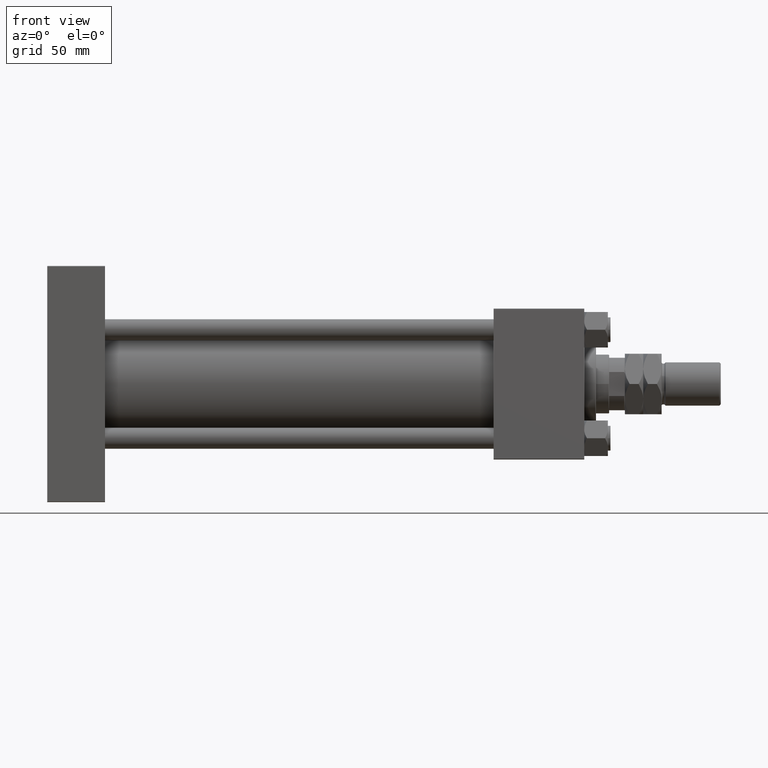
[diagram: clean part render]
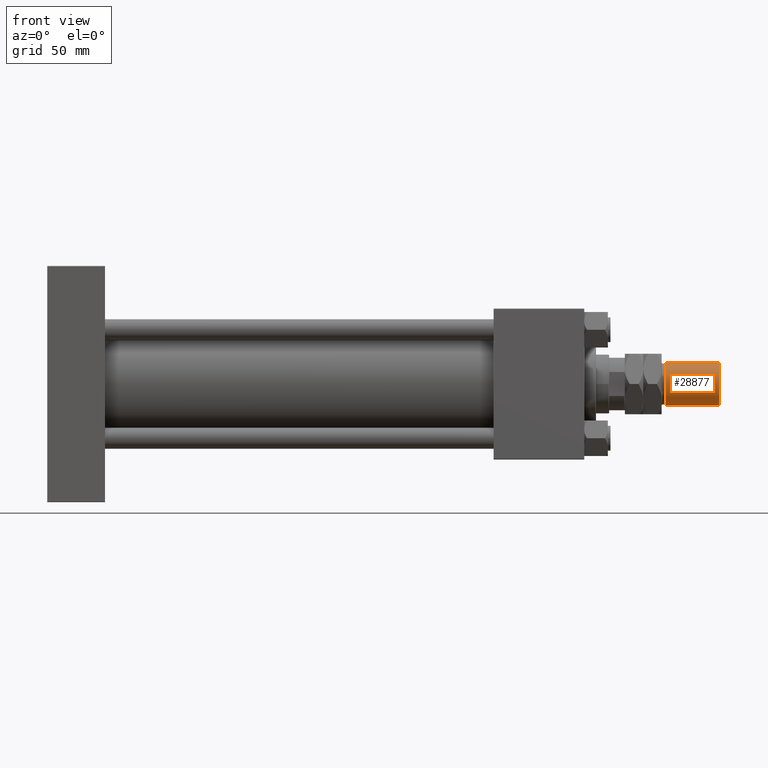
[diagram: same view with one face highlighted and labeled with its STEP entity id]
A machine part, front view. The second image highlights one B-rep face of the part: STEP entity #28877.
In plain terms, the highlighted cylindrical surface (edge-blend (fillet) strip) has radius 16.5 mm, axis along (-1, -0, 0).
Its self-contained STEP definition (entity closure, byte-faithful):
#393 = EDGE_CURVE ( 'NONE', #16564, #30171, #16070, .T. ) ;
#688 = DIRECTION ( 'NONE',  ( -0.000000000000000000, -0.000000000000000000, -1.000000000000000000 ) ) ;
#965 = FACE_OUTER_BOUND ( 'NONE', #30051, .T. ) ;
#1714 = EDGE_CURVE ( 'NONE', #30171, #22889, #36546, .T. ) ;
#2382 = EDGE_CURVE ( 'NONE', #14061, #16564, #42735, .T. ) ;
#2530 = CARTESIAN_POINT ( 'NONE',  ( -16.50000000000000000, 0.000000000000000000, 30.99999999999998579 ) ) ;
#2566 = CARTESIAN_POINT ( 'NONE',  ( 16.50000000000000000, 2.020667218593133100E-15, 73.00000000000000000 ) ) ;
#3136 = ORIENTED_EDGE ( 'NONE', *, *, #1714, .T. ) ;
#4097 = AXIS2_PLACEMENT_3D ( 'NONE', #42043, #688, #26152 ) ;
#4254 = AXIS2_PLACEMENT_3D ( 'NONE', #31579, #43920, #35150 ) ;
#14061 = VERTEX_POINT ( 'NONE', #28550 ) ;
#15418 = LINE ( 'NONE', #2566, #25111 ) ;
#16070 = LINE ( 'NONE', #16335, #39200 ) ;
#16335 = CARTESIAN_POINT ( 'NONE',  ( -16.50000000000000000, 0.000000000000000000, 73.00000000000000000 ) ) ;
#16564 = VERTEX_POINT ( 'NONE', #22085 ) ;
#20711 = DIRECTION ( 'NONE',  ( -0.000000000000000000, -0.000000000000000000, -1.000000000000000000 ) ) ;
#22085 = CARTESIAN_POINT ( 'NONE',  ( -16.50000000000000000, 0.000000000000000000, 72.00000000000000000 ) ) ;
#22889 = VERTEX_POINT ( 'NONE', #29300 ) ;
#23635 = DIRECTION ( 'NONE',  ( -0.000000000000000000, -0.000000000000000000, -1.000000000000000000 ) ) ;
#25111 = VECTOR ( 'NONE', #23635, 1000.000000000000000 ) ;
#26152 = DIRECTION ( 'NONE',  ( -1.000000000000000000, 0.000000000000000000, 0.000000000000000000 ) ) ;
#28550 = CARTESIAN_POINT ( 'NONE',  ( 16.50000000000000000, 2.020667218593133100E-15, 72.00000000000000000 ) ) ;
#28877 = ADVANCED_FACE ( 'NONE', ( #965 ), #30246, .T. ) ;
#29300 = CARTESIAN_POINT ( 'NONE',  ( 16.50000000000000000, 2.020667218593133100E-15, 30.99999999999998579 ) ) ;
#30051 = EDGE_LOOP ( 'NONE', ( #33674, #32479, #37451, #3136 ) ) ;
#30171 = VERTEX_POINT ( 'NONE', #2530 ) ;
#30246 = CYLINDRICAL_SURFACE ( 'NONE', #4097, 16.50000000000000000 ) ;
#31579 = CARTESIAN_POINT ( 'NONE',  ( 0.000000000000000000, 0.000000000000000000, 72.00000000000000000 ) ) ;
#32479 = ORIENTED_EDGE ( 'NONE', *, *, #2382, .T. ) ;
#32815 = CARTESIAN_POINT ( 'NONE',  ( 0.000000000000000000, 0.000000000000000000, 30.99999999999998579 ) ) ;
#33674 = ORIENTED_EDGE ( 'NONE', *, *, #46419, .F. ) ;
#35150 = DIRECTION ( 'NONE',  ( 1.000000000000000000, 0.000000000000000000, 0.000000000000000000 ) ) ;
#36546 = CIRCLE ( 'NONE', #49689, 16.50000000000000000 ) ;
#37451 = ORIENTED_EDGE ( 'NONE', *, *, #393, .T. ) ;
#39200 = VECTOR ( 'NONE', #20711, 1000.000000000000000 ) ;
#42043 = CARTESIAN_POINT ( 'NONE',  ( 0.000000000000000000, 0.000000000000000000, 73.00000000000000000 ) ) ;
#42735 = CIRCLE ( 'NONE', #4254, 16.50000000000000000 ) ;
#43920 = DIRECTION ( 'NONE',  ( 0.000000000000000000, 0.000000000000000000, -1.000000000000000000 ) ) ;
#45433 = DIRECTION ( 'NONE',  ( -0.000000000000000000, -0.000000000000000000, 1.000000000000000000 ) ) ;
#46419 = EDGE_CURVE ( 'NONE', #14061, #22889, #15418, .T. ) ;
#49689 = AXIS2_PLACEMENT_3D ( 'NONE', #32815, #45433, #49815 ) ;
#49815 = DIRECTION ( 'NONE',  ( 1.000000000000000000, 0.000000000000000000, 0.000000000000000000 ) ) ;